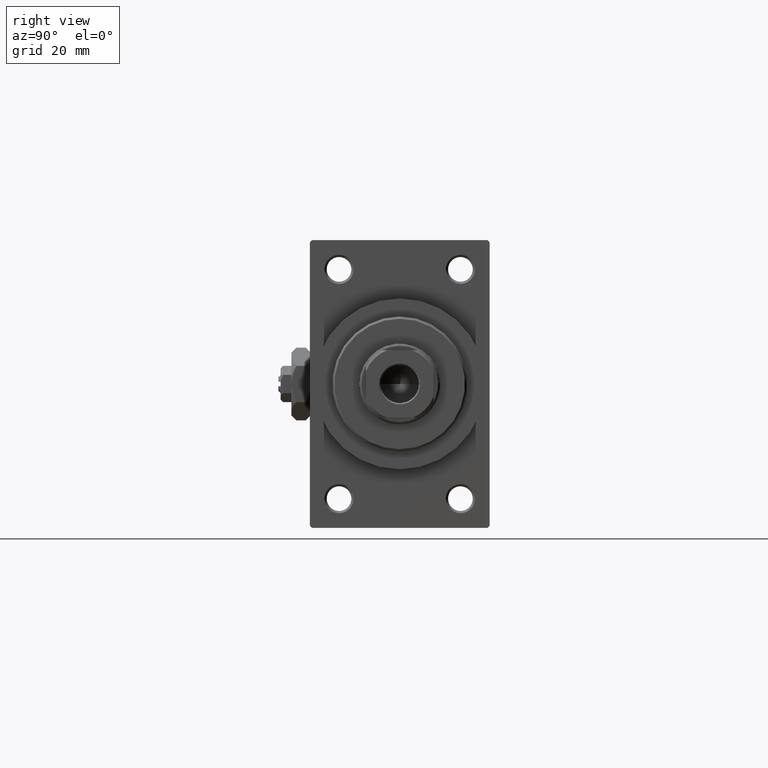
[diagram: clean part render]
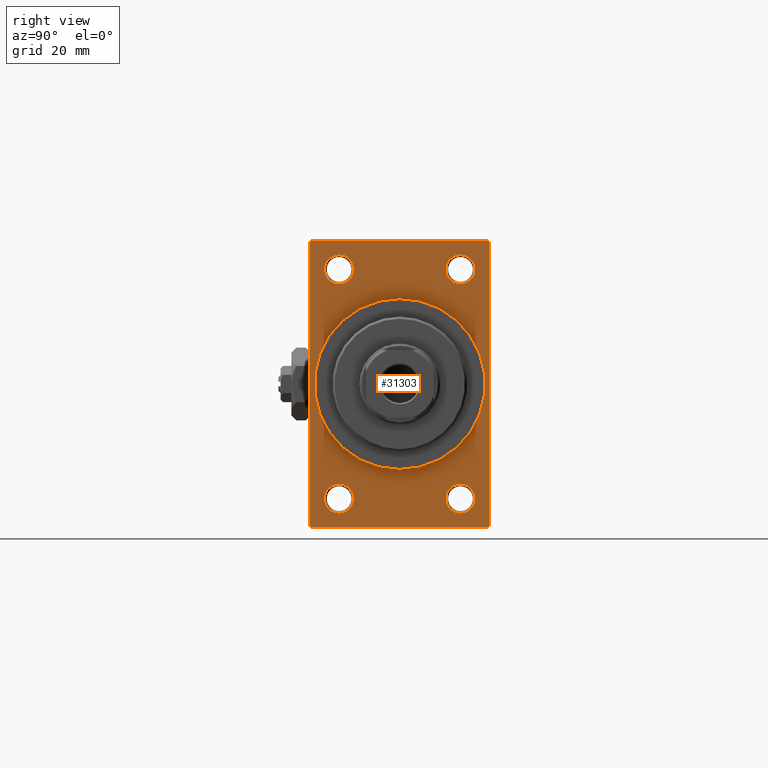
[diagram: same view with one face highlighted and labeled with its STEP entity id]
A machine part, right view. The second image highlights one B-rep face of the part: STEP entity #31303.
In plain terms, the highlighted planar face has unit normal (-1, 0, 0).
Its self-contained STEP definition (entity closure, byte-faithful):
#357 = EDGE_CURVE ( 'NONE', #33853, #32535, #32558, .T. ) ;
#1046 = AXIS2_PLACEMENT_3D ( 'NONE', #20832, #35623, #35859 ) ;
#1305 = EDGE_LOOP ( 'NONE', ( #18943, #16825 ) ) ;
#1426 = EDGE_CURVE ( 'NONE', #19929, #40297, #31725, .T. ) ;
#1723 = DIRECTION ( 'NONE',  ( -1.000000000000000000, -0.000000000000000000, -0.000000000000000000 ) ) ;
#1741 = AXIS2_PLACEMENT_3D ( 'NONE', #40047, #1723, #21317 ) ;
#2018 = ORIENTED_EDGE ( 'NONE', *, *, #46838, .T. ) ;
#2040 = CARTESIAN_POINT ( 'NONE',  ( 109.0000000000000142, 13.49999999999999822, -28.75000000000000000 ) ) ;
#2141 = ORIENTED_EDGE ( 'NONE', *, *, #10578, .T. ) ;
#2186 = LINE ( 'NONE', #35672, #6064 ) ;
#3578 = CARTESIAN_POINT ( 'NONE',  ( 109.0000000000000142, -19.49999999999998579, 31.99999999999999289 ) ) ;
#3882 = AXIS2_PLACEMENT_3D ( 'NONE', #19604, #22817, #35124 ) ;
#4341 = ORIENTED_EDGE ( 'NONE', *, *, #6959, .T. ) ;
#4350 = CARTESIAN_POINT ( 'NONE',  ( 109.0000000000000142, -13.50000000000000178, 25.50000000000000355 ) ) ;
#4608 = ORIENTED_EDGE ( 'NONE', *, *, #5860, .F. ) ;
#5006 = CARTESIAN_POINT ( 'NONE',  ( 109.0000000000000142, 20.00000000000000000, -32.00000000000000000 ) ) ;
#5411 = DIRECTION ( 'NONE',  ( -0.000000000000000000, 0.000000000000000000, 1.000000000000000000 ) ) ;
#5860 = EDGE_CURVE ( 'NONE', #33853, #48124, #16801, .T. ) ;
#5908 = VERTEX_POINT ( 'NONE', #2040 ) ;
#6020 = AXIS2_PLACEMENT_3D ( 'NONE', #48017, #10095, #36439 ) ;
#6064 = VECTOR ( 'NONE', #16705, 1000.000000000000114 ) ;
#6235 = CARTESIAN_POINT ( 'NONE',  ( 109.0000000000000142, 13.49999999999999822, 28.74999999999996803 ) ) ;
#6466 = CARTESIAN_POINT ( 'NONE',  ( 109.0000000000000142, 20.00000000000000000, -31.49999999999998579 ) ) ;
#6711 = CARTESIAN_POINT ( 'NONE',  ( 109.0000000000000142, 13.49999999999999822, -25.50000000000000000 ) ) ;
#6959 = EDGE_CURVE ( 'NONE', #41026, #16822, #8263, .T. ) ;
#7472 = EDGE_CURVE ( 'NONE', #39968, #16241, #35633, .T. ) ;
#7597 = ORIENTED_EDGE ( 'NONE', *, *, #17068, .T. ) ;
#7766 = EDGE_CURVE ( 'NONE', #33148, #47312, #19228, .T. ) ;
#8263 = LINE ( 'NONE', #23264, #41213 ) ;
#8284 = CARTESIAN_POINT ( 'NONE',  ( 109.0000000000000142, -19.49999999999998579, -32.00000000000000000 ) ) ;
#8452 = DIRECTION ( 'NONE',  ( 0.000000000000000000, -1.000000000000000000, 0.000000000000000000 ) ) ;
#8739 = ORIENTED_EDGE ( 'NONE', *, *, #45667, .T. ) ;
#8850 = FACE_BOUND ( 'NONE', #40617, .T. ) ;
#9343 = FACE_BOUND ( 'NONE', #34232, .T. ) ;
#9609 = CIRCLE ( 'NONE', #1741, 3.250000000000002665 ) ;
#9830 = FACE_BOUND ( 'NONE', #17449, .T. ) ;
#10095 = DIRECTION ( 'NONE',  ( -1.000000000000000000, -0.000000000000000000, -0.000000000000000000 ) ) ;
#10319 = CARTESIAN_POINT ( 'NONE',  ( 109.0000000000000142, -13.50000000000000533, -25.49999999999999645 ) ) ;
#10578 = EDGE_CURVE ( 'NONE', #16241, #48124, #33057, .T. ) ;
#11366 = EDGE_CURVE ( 'NONE', #41026, #32535, #25669, .T. ) ;
#12288 = VERTEX_POINT ( 'NONE', #29040 ) ;
#12299 = EDGE_CURVE ( 'NONE', #31453, #19373, #32736, .T. ) ;
#12487 = CARTESIAN_POINT ( 'NONE',  ( 109.0000000000000142, -20.00000000000000000, 31.99999999999999289 ) ) ;
#13503 = PLANE ( 'NONE',  #47900 ) ;
#13554 = CIRCLE ( 'NONE', #38742, 3.249999999999961364 ) ;
#13742 = EDGE_CURVE ( 'NONE', #30453, #12288, #22523, .T. ) ;
#13837 = DIRECTION ( 'NONE',  ( 0.000000000000000000, 0.7071067811865426878, -0.7071067811865524577 ) ) ;
#14323 = CARTESIAN_POINT ( 'NONE',  ( 109.0000000000000142, 20.00000000000000000, -31.49999999999998579 ) ) ;
#15160 = DIRECTION ( 'NONE',  ( -1.000000000000000000, -0.000000000000000000, -0.000000000000000000 ) ) ;
#15264 = EDGE_LOOP ( 'NONE', ( #39349, #2141, #4608, #29197, #40783, #4341, #33635, #25207 ) ) ;
#16065 = EDGE_CURVE ( 'NONE', #47312, #33148, #17880, .T. ) ;
#16241 = VERTEX_POINT ( 'NONE', #17159 ) ;
#16383 = CIRCLE ( 'NONE', #32943, 3.250000000000002665 ) ;
#16423 = ORIENTED_EDGE ( 'NONE', *, *, #7766, .T. ) ;
#16451 = CIRCLE ( 'NONE', #3882, 19.00000000000000000 ) ;
#16596 = CARTESIAN_POINT ( 'NONE',  ( 109.0000000000000142, 20.00000000000000000, 32.00000000000000000 ) ) ;
#16705 = DIRECTION ( 'NONE',  ( -0.000000000000000000, -0.7071067811865474617, -0.7071067811865474617 ) ) ;
#16801 = LINE ( 'NONE', #5006, #23095 ) ;
#16822 = VERTEX_POINT ( 'NONE', #33222 ) ;
#16825 = ORIENTED_EDGE ( 'NONE', *, *, #13742, .F. ) ;
#17068 = EDGE_CURVE ( 'NONE', #40297, #19929, #41522, .T. ) ;
#17159 = CARTESIAN_POINT ( 'NONE',  ( 109.0000000000000142, -20.00000000000000000, -31.49999999999997868 ) ) ;
#17449 = EDGE_LOOP ( 'NONE', ( #18831, #16423 ) ) ;
#17786 = EDGE_LOOP ( 'NONE', ( #19867, #2018 ) ) ;
#17880 = CIRCLE ( 'NONE', #48589, 3.250000000000002665 ) ;
#18017 = DIRECTION ( 'NONE',  ( -1.000000000000000000, -0.000000000000000000, -0.000000000000000000 ) ) ;
#18831 = ORIENTED_EDGE ( 'NONE', *, *, #16065, .T. ) ;
#18943 = ORIENTED_EDGE ( 'NONE', *, *, #22965, .F. ) ;
#19061 = CARTESIAN_POINT ( 'NONE',  ( 109.0000000000000142, -13.50000000000000178, 28.75000000000000355 ) ) ;
#19228 = CIRCLE ( 'NONE', #32596, 3.250000000000002665 ) ;
#19373 = VERTEX_POINT ( 'NONE', #6235 ) ;
#19604 = CARTESIAN_POINT ( 'NONE',  ( 109.0000000000000142, 0.000000000000000000, 0.000000000000000000 ) ) ;
#19640 = DIRECTION ( 'NONE',  ( 0.000000000000000000, 0.000000000000000000, 1.000000000000000000 ) ) ;
#19867 = ORIENTED_EDGE ( 'NONE', *, *, #12299, .T. ) ;
#19884 = DIRECTION ( 'NONE',  ( -1.000000000000000000, -0.000000000000000000, -0.000000000000000000 ) ) ;
#19929 = VERTEX_POINT ( 'NONE', #19061 ) ;
#19982 = VERTEX_POINT ( 'NONE', #26462 ) ;
#20530 = DIRECTION ( 'NONE',  ( 0.000000000000000000, -1.000000000000000000, -1.734723475976807094E-16 ) ) ;
#20832 = CARTESIAN_POINT ( 'NONE',  ( 109.0000000000000142, -13.50000000000000178, 25.50000000000000355 ) ) ;
#21225 = CARTESIAN_POINT ( 'NONE',  ( 109.0000000000000142, -19.49999999999998579, -32.00000000000000000 ) ) ;
#21317 = DIRECTION ( 'NONE',  ( 0.000000000000000000, 0.000000000000000000, 1.000000000000000000 ) ) ;
#21583 = EDGE_CURVE ( 'NONE', #5908, #19982, #16383, .T. ) ;
#22523 = CIRCLE ( 'NONE', #35128, 19.00000000000000000 ) ;
#22817 = DIRECTION ( 'NONE',  ( 1.000000000000000000, 0.000000000000000000, 0.000000000000000000 ) ) ;
#22965 = EDGE_CURVE ( 'NONE', #12288, #30453, #16451, .T. ) ;
#23095 = VECTOR ( 'NONE', #8452, 1000.000000000000000 ) ;
#23264 = CARTESIAN_POINT ( 'NONE',  ( 109.0000000000000142, 19.49999999999998579, 32.00000000000000000 ) ) ;
#24232 = ORIENTED_EDGE ( 'NONE', *, *, #1426, .T. ) ;
#24585 = FACE_OUTER_BOUND ( 'NONE', #15264, .T. ) ;
#24635 = CARTESIAN_POINT ( 'NONE',  ( 109.0000000000000142, 19.49999999999998579, -32.00000000000000000 ) ) ;
#24825 = FACE_BOUND ( 'NONE', #1305, .T. ) ;
#25207 = ORIENTED_EDGE ( 'NONE', *, *, #27252, .T. ) ;
#25669 = LINE ( 'NONE', #43900, #32701 ) ;
#26462 = CARTESIAN_POINT ( 'NONE',  ( 109.0000000000000142, 13.49999999999999822, -22.24999999999999645 ) ) ;
#27252 = EDGE_CURVE ( 'NONE', #32345, #39968, #2186, .T. ) ;
#27441 = LINE ( 'NONE', #16596, #38013 ) ;
#27464 = DIRECTION ( 'NONE',  ( 0.000000000000000000, 0.000000000000000000, 1.000000000000000000 ) ) ;
#27737 = CARTESIAN_POINT ( 'NONE',  ( 109.0000000000000142, -13.50000000000000533, -22.24999999999999289 ) ) ;
#29040 = CARTESIAN_POINT ( 'NONE',  ( 109.0000000000000142, 0.000000000000000000, 19.00000000000000000 ) ) ;
#29197 = ORIENTED_EDGE ( 'NONE', *, *, #357, .T. ) ;
#30453 = VERTEX_POINT ( 'NONE', #31917 ) ;
#30546 = CARTESIAN_POINT ( 'NONE',  ( 109.0000000000000142, -13.50000000000000533, -28.74999999999999645 ) ) ;
#30905 = VECTOR ( 'NONE', #31833, 1000.000000000000114 ) ;
#31303 = ADVANCED_FACE ( 'NONE', ( #8850, #9830, #9343, #31494, #24825, #24585 ), #13503, .F. ) ;
#31453 = VERTEX_POINT ( 'NONE', #40832 ) ;
#31494 = FACE_BOUND ( 'NONE', #17786, .T. ) ;
#31683 = CARTESIAN_POINT ( 'NONE',  ( 109.0000000000000142, -13.50000000000000178, 22.25000000000000000 ) ) ;
#31725 = CIRCLE ( 'NONE', #1046, 3.250000000000002665 ) ;
#31833 = DIRECTION ( 'NONE',  ( -0.000000000000000000, 0.7071067811865474617, 0.7071067811865474617 ) ) ;
#31917 = CARTESIAN_POINT ( 'NONE',  ( 109.0000000000000142, 2.326828918379970970E-15, -19.00000000000000000 ) ) ;
#32345 = VERTEX_POINT ( 'NONE', #3578 ) ;
#32535 = VERTEX_POINT ( 'NONE', #14323 ) ;
#32558 = LINE ( 'NONE', #6466, #30905 ) ;
#32596 = AXIS2_PLACEMENT_3D ( 'NONE', #46172, #46428, #27464 ) ;
#32629 = CARTESIAN_POINT ( 'NONE',  ( 109.0000000000000142, 0.000000000000000000, 0.000000000000000000 ) ) ;
#32701 = VECTOR ( 'NONE', #36513, 1000.000000000000000 ) ;
#32736 = CIRCLE ( 'NONE', #6020, 3.249999999999961364 ) ;
#32869 = AXIS2_PLACEMENT_3D ( 'NONE', #4350, #15160, #34381 ) ;
#32943 = AXIS2_PLACEMENT_3D ( 'NONE', #6711, #18017, #33051 ) ;
#33051 = DIRECTION ( 'NONE',  ( 0.000000000000000000, 0.000000000000000000, 1.000000000000000000 ) ) ;
#33057 = LINE ( 'NONE', #21225, #38189 ) ;
#33148 = VERTEX_POINT ( 'NONE', #27737 ) ;
#33222 = CARTESIAN_POINT ( 'NONE',  ( 109.0000000000000142, 19.49999999999998579, 32.00000000000000000 ) ) ;
#33455 = DIRECTION ( 'NONE',  ( 0.000000000000000000, 0.000000000000000000, 1.000000000000000000 ) ) ;
#33635 = ORIENTED_EDGE ( 'NONE', *, *, #44776, .T. ) ;
#33853 = VERTEX_POINT ( 'NONE', #24635 ) ;
#34177 = VECTOR ( 'NONE', #46225, 1000.000000000000000 ) ;
#34232 = EDGE_LOOP ( 'NONE', ( #34582, #8739 ) ) ;
#34381 = DIRECTION ( 'NONE',  ( 0.000000000000000000, 0.000000000000000000, 1.000000000000000000 ) ) ;
#34582 = ORIENTED_EDGE ( 'NONE', *, *, #21583, .T. ) ;
#35124 = DIRECTION ( 'NONE',  ( 0.000000000000000000, 0.000000000000000000, -1.000000000000000000 ) ) ;
#35128 = AXIS2_PLACEMENT_3D ( 'NONE', #32629, #47658, #40256 ) ;
#35443 = CARTESIAN_POINT ( 'NONE',  ( 109.0000000000000142, 0.000000000000000000, 0.000000000000000000 ) ) ;
#35623 = DIRECTION ( 'NONE',  ( -1.000000000000000000, -0.000000000000000000, -0.000000000000000000 ) ) ;
#35633 = LINE ( 'NONE', #12487, #34177 ) ;
#35672 = CARTESIAN_POINT ( 'NONE',  ( 109.0000000000000142, -20.00000000000000000, 31.49999999999997868 ) ) ;
#35859 = DIRECTION ( 'NONE',  ( 0.000000000000000000, 0.000000000000000000, 1.000000000000000000 ) ) ;
#36439 = DIRECTION ( 'NONE',  ( 0.000000000000000000, 0.000000000000000000, 1.000000000000000000 ) ) ;
#36486 = CARTESIAN_POINT ( 'NONE',  ( 109.0000000000000142, -20.00000000000000000, 31.49999999999997868 ) ) ;
#36513 = DIRECTION ( 'NONE',  ( 0.000000000000000000, 0.000000000000000000, -1.000000000000000000 ) ) ;
#38013 = VECTOR ( 'NONE', #20530, 1000.000000000000000 ) ;
#38189 = VECTOR ( 'NONE', #13837, 1000.000000000000000 ) ;
#38297 = DIRECTION ( 'NONE',  ( 0.000000000000000000, -0.7071067811865474617, 0.7071067811865474617 ) ) ;
#38742 = AXIS2_PLACEMENT_3D ( 'NONE', #42064, #19884, #19640 ) ;
#39349 = ORIENTED_EDGE ( 'NONE', *, *, #7472, .T. ) ;
#39855 = DIRECTION ( 'NONE',  ( -1.000000000000000000, 0.000000000000000000, -0.000000000000000000 ) ) ;
#39968 = VERTEX_POINT ( 'NONE', #36486 ) ;
#40047 = CARTESIAN_POINT ( 'NONE',  ( 109.0000000000000142, 13.49999999999999822, -25.50000000000000000 ) ) ;
#40256 = DIRECTION ( 'NONE',  ( 0.000000000000000000, 0.000000000000000000, -1.000000000000000000 ) ) ;
#40297 = VERTEX_POINT ( 'NONE', #31683 ) ;
#40617 = EDGE_LOOP ( 'NONE', ( #7597, #24232 ) ) ;
#40783 = ORIENTED_EDGE ( 'NONE', *, *, #11366, .F. ) ;
#40832 = CARTESIAN_POINT ( 'NONE',  ( 109.0000000000000142, 13.49999999999999822, 22.25000000000004263 ) ) ;
#41026 = VERTEX_POINT ( 'NONE', #44576 ) ;
#41213 = VECTOR ( 'NONE', #38297, 1000.000000000000114 ) ;
#41522 = CIRCLE ( 'NONE', #32869, 3.250000000000002665 ) ;
#42064 = CARTESIAN_POINT ( 'NONE',  ( 109.0000000000000142, 13.49999999999999822, 25.50000000000000355 ) ) ;
#43900 = CARTESIAN_POINT ( 'NONE',  ( 109.0000000000000142, 20.00000000000000000, 32.00000000000000000 ) ) ;
#44539 = DIRECTION ( 'NONE',  ( -1.000000000000000000, -0.000000000000000000, -0.000000000000000000 ) ) ;
#44576 = CARTESIAN_POINT ( 'NONE',  ( 109.0000000000000142, 20.00000000000000000, 31.49999999999998579 ) ) ;
#44776 = EDGE_CURVE ( 'NONE', #16822, #32345, #27441, .T. ) ;
#45667 = EDGE_CURVE ( 'NONE', #19982, #5908, #9609, .T. ) ;
#46172 = CARTESIAN_POINT ( 'NONE',  ( 109.0000000000000142, -13.50000000000000533, -25.49999999999999645 ) ) ;
#46225 = DIRECTION ( 'NONE',  ( 0.000000000000000000, 0.000000000000000000, -1.000000000000000000 ) ) ;
#46428 = DIRECTION ( 'NONE',  ( -1.000000000000000000, -0.000000000000000000, -0.000000000000000000 ) ) ;
#46838 = EDGE_CURVE ( 'NONE', #19373, #31453, #13554, .T. ) ;
#47312 = VERTEX_POINT ( 'NONE', #30546 ) ;
#47658 = DIRECTION ( 'NONE',  ( 1.000000000000000000, 0.000000000000000000, 0.000000000000000000 ) ) ;
#47900 = AXIS2_PLACEMENT_3D ( 'NONE', #35443, #39855, #5411 ) ;
#48017 = CARTESIAN_POINT ( 'NONE',  ( 109.0000000000000142, 13.49999999999999822, 25.50000000000000355 ) ) ;
#48124 = VERTEX_POINT ( 'NONE', #8284 ) ;
#48589 = AXIS2_PLACEMENT_3D ( 'NONE', #10319, #44539, #33455 ) ;